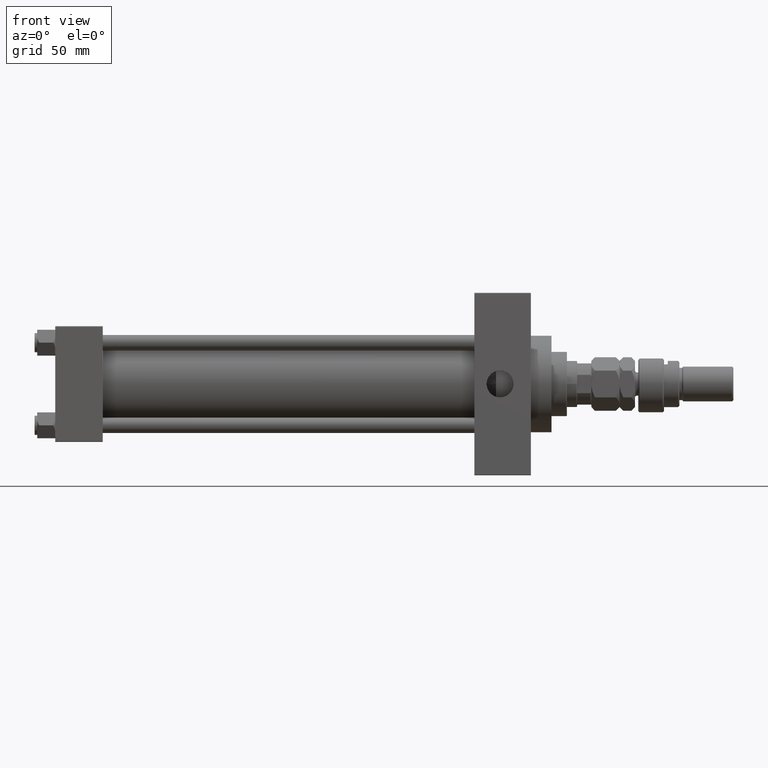
[diagram: clean part render]
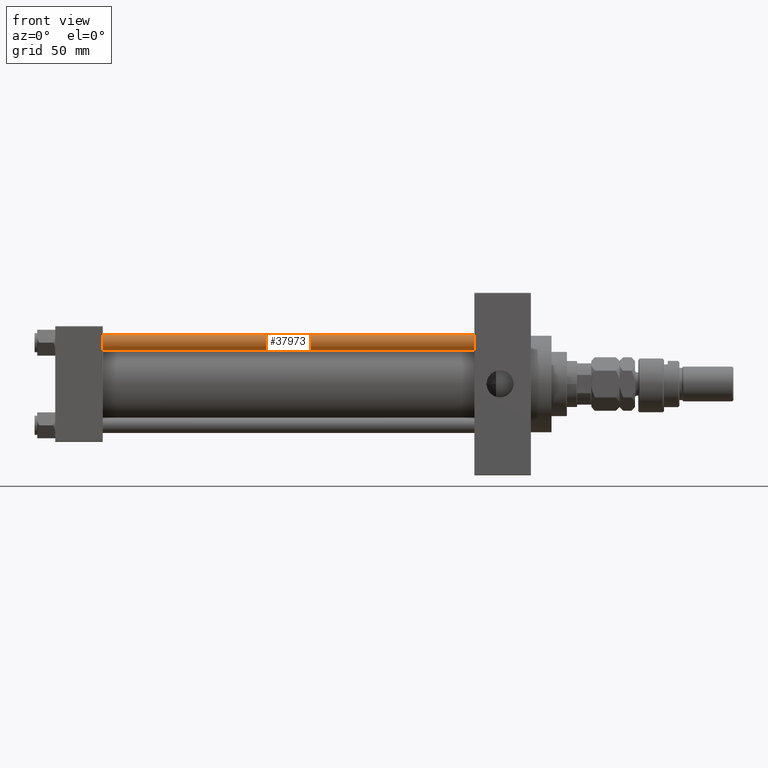
[diagram: same view with one face highlighted and labeled with its STEP entity id]
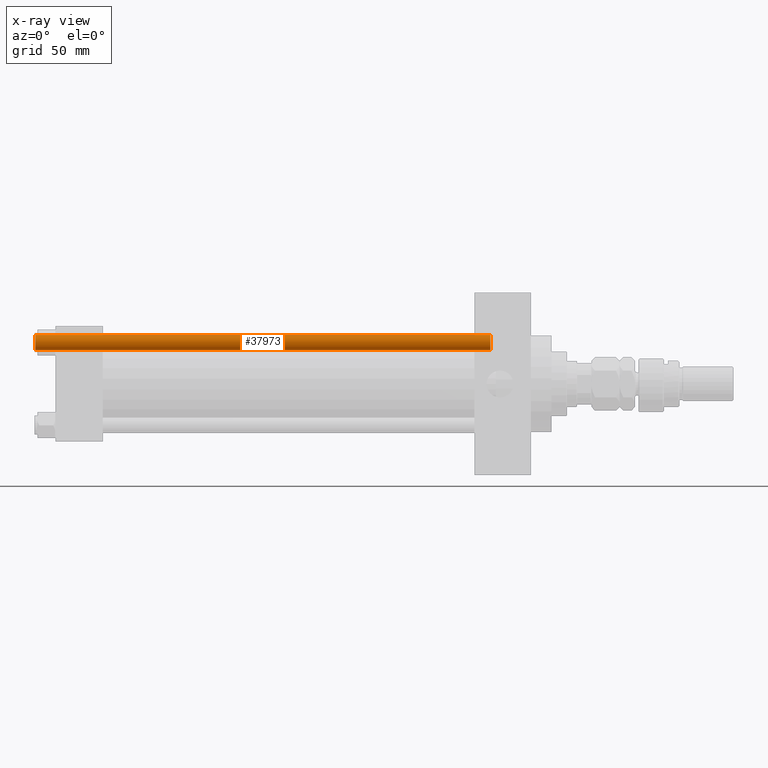
[diagram: x-ray of the same camera — body ghosted, the highlighted face saturated]
A machine part, front view. The second image highlights one B-rep face of the part: STEP entity #37973.
The next image is the same camera in x-ray: the body ghosted, the highlighted face saturated — about 0% of this face is hidden behind the body in this view.
In plain terms, the highlighted cylindrical surface (edge-blend (fillet) strip) has radius 6 mm, axis along (1, 0, 0).
Its self-contained STEP definition (entity closure, byte-faithful):
#813 = DIRECTION ( 'NONE',  ( -0.000000000000000000, -0.000000000000000000, -1.000000000000000000 ) ) ;
#827 = CYLINDRICAL_SURFACE ( 'NONE', #34965, 6.000000000000000888 ) ;
#2563 = DIRECTION ( 'NONE',  ( 1.000000000000000000, 0.000000000000000000, 0.000000000000000000 ) ) ;
#4015 = ORIENTED_EDGE ( 'NONE', *, *, #45549, .T. ) ;
#4907 = AXIS2_PLACEMENT_3D ( 'NONE', #41738, #29257, #2563 ) ;
#5652 = ORIENTED_EDGE ( 'NONE', *, *, #13817, .T. ) ;
#8953 = DIRECTION ( 'NONE',  ( -0.000000000000000000, -0.000000000000000000, -1.000000000000000000 ) ) ;
#12491 = LINE ( 'NONE', #35672, #16355 ) ;
#13817 = EDGE_CURVE ( 'NONE', #33837, #27145, #33333, .T. ) ;
#16355 = VECTOR ( 'NONE', #813, 1000.000000000000000 ) ;
#16475 = EDGE_LOOP ( 'NONE', ( #5652, #17807, #4015, #48501 ) ) ;
#16802 = FACE_OUTER_BOUND ( 'NONE', #16475, .T. ) ;
#17807 = ORIENTED_EDGE ( 'NONE', *, *, #23219, .T. ) ;
#18029 = DIRECTION ( 'NONE',  ( -0.000000000000000000, -0.000000000000000000, -1.000000000000000000 ) ) ;
#19799 = EDGE_CURVE ( 'NONE', #33837, #49044, #12491, .T. ) ;
#21858 = LINE ( 'NONE', #46032, #42611 ) ;
#23125 = CARTESIAN_POINT ( 'NONE',  ( 0.000000000000000000, 0.000000000000000000, 0.5000000000001114664 ) ) ;
#23219 = EDGE_CURVE ( 'NONE', #27145, #48787, #21858, .T. ) ;
#23315 = CARTESIAN_POINT ( 'NONE',  ( -6.000000000000000888, 0.000000000000000000, 354.5000000000000000 ) ) ;
#25296 = CIRCLE ( 'NONE', #44027, 6.000000000000000888 ) ;
#27145 = VERTEX_POINT ( 'NONE', #30936 ) ;
#27466 = DIRECTION ( 'NONE',  ( -0.000000000000000000, -0.000000000000000000, 1.000000000000000000 ) ) ;
#28280 = CARTESIAN_POINT ( 'NONE',  ( 0.000000000000000000, 0.000000000000000000, 355.0000000000000000 ) ) ;
#29257 = DIRECTION ( 'NONE',  ( 0.000000000000000000, 0.000000000000000000, -1.000000000000000000 ) ) ;
#30936 = CARTESIAN_POINT ( 'NONE',  ( 6.000000000000000888, 7.347880794884120722E-16, 354.5000000000000000 ) ) ;
#33333 = CIRCLE ( 'NONE', #4907, 6.000000000000000888 ) ;
#33837 = VERTEX_POINT ( 'NONE', #23315 ) ;
#34547 = CARTESIAN_POINT ( 'NONE',  ( -6.000000000000000888, 0.000000000000000000, 0.5000000000001114664 ) ) ;
#34965 = AXIS2_PLACEMENT_3D ( 'NONE', #28280, #8953, #47383 ) ;
#35672 = CARTESIAN_POINT ( 'NONE',  ( -6.000000000000000888, 0.000000000000000000, 355.0000000000000000 ) ) ;
#37973 = ADVANCED_FACE ( 'NONE', ( #16802 ), #827, .T. ) ;
#40240 = CARTESIAN_POINT ( 'NONE',  ( 6.000000000000000888, 7.347880794884120722E-16, 0.5000000000001114664 ) ) ;
#41738 = CARTESIAN_POINT ( 'NONE',  ( 0.000000000000000000, 0.000000000000000000, 354.5000000000000000 ) ) ;
#42611 = VECTOR ( 'NONE', #18029, 1000.000000000000000 ) ;
#42993 = DIRECTION ( 'NONE',  ( 1.000000000000000000, 0.000000000000000000, 0.000000000000000000 ) ) ;
#44027 = AXIS2_PLACEMENT_3D ( 'NONE', #23125, #27466, #42993 ) ;
#45549 = EDGE_CURVE ( 'NONE', #48787, #49044, #25296, .T. ) ;
#46032 = CARTESIAN_POINT ( 'NONE',  ( 6.000000000000000888, 7.347880794884120722E-16, 355.0000000000000000 ) ) ;
#47383 = DIRECTION ( 'NONE',  ( -1.000000000000000000, 0.000000000000000000, 0.000000000000000000 ) ) ;
#48501 = ORIENTED_EDGE ( 'NONE', *, *, #19799, .F. ) ;
#48787 = VERTEX_POINT ( 'NONE', #40240 ) ;
#49044 = VERTEX_POINT ( 'NONE', #34547 ) ;